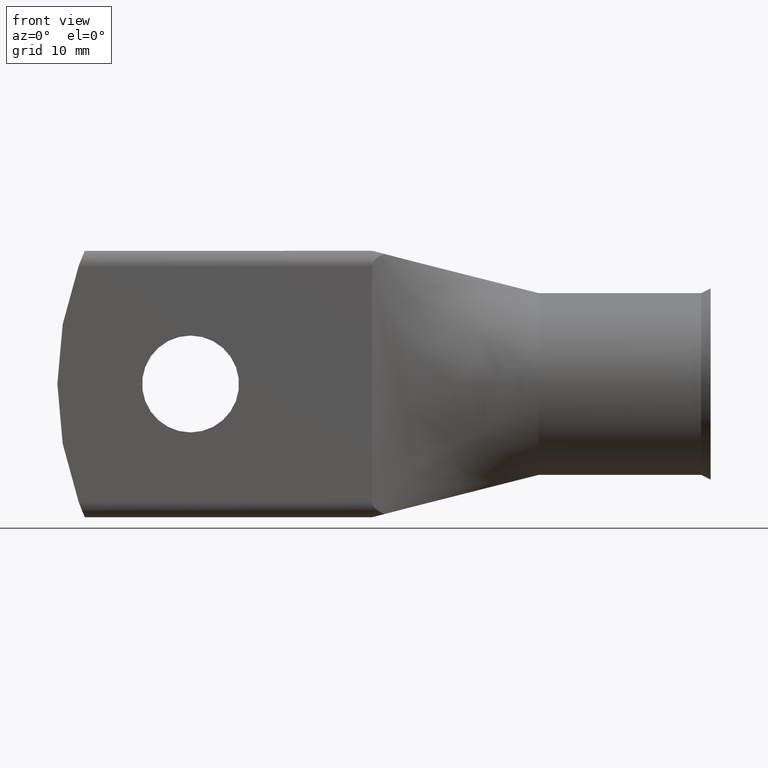
[diagram: clean part render]
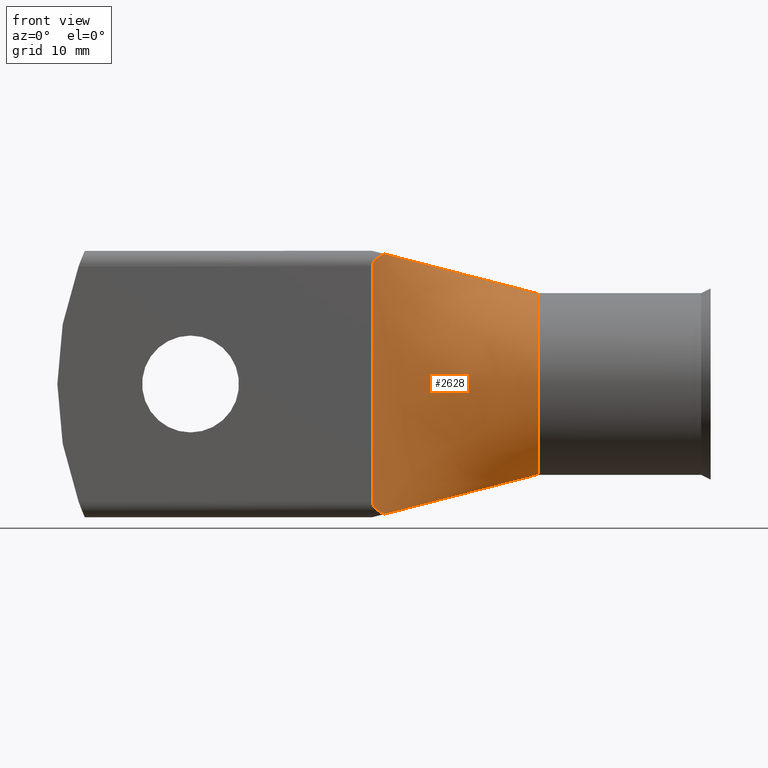
[diagram: same view with one face highlighted and labeled with its STEP entity id]
A machine part, front view. The second image highlights one B-rep face of the part: STEP entity #2628.
In plain terms, the highlighted face is a freeform B-spline surface patch.
Its self-contained STEP definition (entity closure, byte-faithful):
#6 = CARTESIAN_POINT ( 'NONE',  ( -2.102127999999999997, -1.508438455485208385, 1.260366738403396969 ) ) ;
#15 = CARTESIAN_POINT ( 'NONE',  ( 1.338032000000000110, 0.01136571569883744123, -0.1827825998740106872 ) ) ;
#33 = CARTESIAN_POINT ( 'NONE',  ( -0.03803199999999777592, -0.6724159754329607219, 1.431786538840532641 ) ) ;
#42 = CARTESIAN_POINT ( 'NONE',  ( -0.03803200000000050984, -0.1100373086516002880, -0.07425965862740598056 ) ) ;
#68 = CARTESIAN_POINT ( 'NONE',  ( 0.6499999999999999112, -0.06499999999999998834, -0.02291666666666662341 ) ) ;
#93 = CARTESIAN_POINT ( 'NONE',  ( -0.03803200000000078046, -0.09799385468377602715, 0.03612633398681678459 ) ) ;
#100 = CARTESIAN_POINT ( 'NONE',  ( 0.6637798951056697039, -0.05825068778409513842, 0.5142437491211998557 ) ) ;
#119 = CARTESIAN_POINT ( 'NONE',  ( -0.03803200000000023229, -0.1848515704486949907, 0.2133567811237993550 ) ) ;
#132 = CARTESIAN_POINT ( 'NONE',  ( 1.338032000000000332, 0.2650400686760947533, 0.3687660055124446501 ) ) ;
#154 = EDGE_CURVE ( 'NONE', #2520, #3222, #897, .T. ) ;
#184 = B_SPLINE_SURFACE_WITH_KNOTS ( 'NONE', 3, 1, ( 
 ( #280, #4276, #2690, #4252, #1054 ),
 ( #4302, #3052, #331, #1855, #4718 ),
 ( #3500, #720, #4642, #1159, #3552 ),
 ( #3888, #1081, #3077, #4667, #2347 ),
 ( #2295, #5081, #1108, #1515, #2666 ),
 ( #3525, #3446, #2246, #3475, #3101 ),
 ( #1956, #5135, #748, #696, #4690 ),
 ( #2272, #1131, #3862, #305, #5108 ),
 ( #1879, #2715, #2320, #4614, #775 ),
 ( #2741, #1928, #5058, #3025, #3914 ),
 ( #356, #1540, #3129, #2642, #4329 ),
 ( #3940, #382, #4226, #3182, #4047 ),
 ( #4434, #4021, #1185, #874, #3234 ),
 ( #513, #15, #2873, #3628, #3997 ),
 ( #491, #801, #2066, #4355, #2037 ),
 ( #2373, #3653, #4459, #42, #4385 ),
 ( #2427, #2403, #1619, #2091, #2481 ),
 ( #2795, #463, #68, #410, #3970 ),
 ( #1644, #827, #439, #1983, #4820 ),
 ( #3209, #1567, #1263, #93, #4743 ),
 ( #3154, #1668, #901, #3260, #2453 ),
 ( #2846, #3579, #4847, #1593, #850 ),
 ( #2012, #4409, #1288, #3605, #2768 ),
 ( #4073, #4768, #3677, #1210, #4796 ),
 ( #1238, #2821, #1311, #119, #2898 ),
 ( #4872, #1691, #3287, #3571, #1679 ),
 ( #3274, #4347, #2787, #819, #4085 ),
 ( #1558, #5127, #1201, #793, #1585 ),
 ( #4320, #401, #4470, #2364, #934 ),
 ( #4108, #3146, #766, #4373, #4759 ),
 ( #3120, #2516, #1299, #1945, #2394 ),
 ( #3988, #132, #3543, #430, #3932 ),
 ( #549, #1533, #1975, #2002, #6 ),
 ( #1704, #3174, #3597, #33, #4736 ),
 ( #2125, #5099, #4859, #1177, #2886 ),
 ( #4494, #2759, #913, #2493, #525 ) ),
 .UNSPECIFIED., .F., .F., .F.,
 ( 4, 3, 2, 2, 2, 2, 2, 2, 2, 2, 2, 2, 2, 2, 2, 3, 4 ),
 ( 2, 1, 1, 1, 2 ),
 ( -0.02000000000000000042, 0.000000000000000000, 0.1249999999999999445, 0.1874999999999999722, 0.2500000000000000000, 0.3125000000000000000, 0.3750000000000000555, 0.4375000000000000000, 0.5000000000000000000, 0.5625000000000001110, 0.6250000000000001110, 0.6875000000000001110, 0.7500000000000001110, 0.8125000000000001110, 0.8750000000000000000, 1.000000000000000000, 2.000000000000000000 ),
 ( -1.000000000000000000, 0.000000000000000000, 1.000000000000000000, 2.000000000000000000, 5.000000000000000000 ),
 .UNSPECIFIED. ) ;
#206 = DIRECTION ( 'NONE',  ( -0.000000000000000000, 0.000000000000000000, 1.000000000000000000 ) ) ;
#256 = CARTESIAN_POINT ( 'NONE',  ( 0.6499999999999999112, -0.06500000000000000222, -0.4850000000000000977 ) ) ;
#280 = CARTESIAN_POINT ( 'NONE',  ( 2.026064000000000309, 0.6863059911300031235, -0.1763132482895397313 ) ) ;
#305 = CARTESIAN_POINT ( 'NONE',  ( -0.03803199999999996167, -0.2897444427546013168, -0.4037430692169367008 ) ) ;
#331 = CARTESIAN_POINT ( 'NONE',  ( 0.6499999999999999112, -0.06500000000000000222, -0.5646666666666667611 ) ) ;
#356 = CARTESIAN_POINT ( 'NONE',  ( 2.026064000000000753, 0.2076845532433655439, -0.2734830712099894923 ) ) ;
#382 = CARTESIAN_POINT ( 'NONE',  ( 1.338032000000000110, 0.05485157044869496540, -0.2449765522095340708 ) ) ;
#401 = CARTESIAN_POINT ( 'NONE',  ( 1.338031999999999444, 0.1597444427546013956, 0.3295902641163968028 ) ) ;
#410 = CARTESIAN_POINT ( 'NONE',  ( -0.03803200000000050984, -0.09487150569120159083, -0.01805903841851114883 ) ) ;
#430 = CARTESIAN_POINT ( 'NONE',  ( -0.03803200000000023229, -0.3950400686760947022, 0.6395673278208888757 ) ) ;
#439 = CARTESIAN_POINT ( 'NONE',  ( 0.6499999999999999112, -0.06499999999999998834, 0.02291666666666674831 ) ) ;
#446 = CARTESIAN_POINT ( 'NONE',  ( 0.6889221515978937171, -0.04492494634703202150, 0.5321616947890102090 ) ) ;
#463 = CARTESIAN_POINT ( 'NONE',  ( 1.338032000000000332, -0.03512849430879838586, -0.02777429491482210147 ) ) ;
#491 = CARTESIAN_POINT ( 'NONE',  ( 2.026064000000000309, 0.04289732738423857744, -0.1550734250725859520 ) ) ;
#513 = CARTESIAN_POINT ( 'NONE',  ( 2.026064000000000309, 0.08773143139767484999, -0.2051485330813547781 ) ) ;
#525 = CARTESIAN_POINT ( 'NONE',  ( -2.102127999999973795, -4.467114794225111929, 6.410704989279595090 ) ) ;
#549 = CARTESIAN_POINT ( 'NONE',  ( 2.026064000000000309, 0.6567192277426041613, 0.1948166307983018042 ) ) ;
#563 = VECTOR ( 'NONE', #1496, 39.37007874015748143 ) ;
#577 = LINE ( 'NONE', #3031, #2381 ) ;
#640 = CARTESIAN_POINT ( 'NONE',  ( 1.338032000000000110, 0.3398715056912016141, 0.000000000000000000 ) ) ;
#696 = CARTESIAN_POINT ( 'NONE',  ( -0.03803199999999996167, -0.3078509057290484408, -0.4404276638948980138 ) ) ;
#720 = CARTESIAN_POINT ( 'NONE',  ( 1.338032000000000110, 0.3007907411025351196, -0.3729910849810239015 ) ) ;
#738 = VERTEX_POINT ( 'NONE', #4712 ) ;
#748 = CARTESIAN_POINT ( 'NONE',  ( 0.6499999999999999112, -0.06499999999999998834, -0.3895833333333334481 ) ) ;
#766 = CARTESIAN_POINT ( 'NONE',  ( 0.6499999999999999112, -0.06499999999999997446, 0.3895833333333333370 ) ) ;
#775 = CARTESIAN_POINT ( 'NONE',  ( -2.102127999999999552, -0.8198174502241143413, -0.3755266560451027136 ) ) ;
#793 = CARTESIAN_POINT ( 'NONE',  ( -0.03803200000000023229, -0.2537043625560286286, 0.3345066640112758227 ) ) ;
#801 = CARTESIAN_POINT ( 'NONE',  ( 1.338032000000000110, -0.01105133630788069678, -0.1348283792029596195 ) ) ;
#819 = CARTESIAN_POINT ( 'NONE',  ( -0.03803200000000023229, -0.2357716053140972712, 0.3019622818426349609 ) ) ;
#827 = CARTESIAN_POINT ( 'NONE',  ( 1.338032000000000110, -0.03512849430879838586, 0.02777429491482227147 ) ) ;
#850 = CARTESIAN_POINT ( 'NONE',  ( -2.102128000000001773, -0.2807946547684772032, 0.03360314985482860256 ) ) ;
#856 = CARTESIAN_POINT ( 'NONE',  ( 0.6998873380981881498, -0.03883504609788611395, 0.5371233076178008048 ) ) ;
#874 = CARTESIAN_POINT ( 'NONE',  ( -0.03803200000000023229, -0.1548575887792589534, -0.1616883586194272082 ) ) ;
#880 = CARTESIAN_POINT ( 'NONE',  ( 0.6593307022810661611, -0.06048995556634014642, 0.5094855770316909505 ) ) ;
#887 = ORIENTED_EDGE ( 'NONE', *, *, #2387, .F. ) ;
#897 = B_SPLINE_CURVE_WITH_KNOTS ( 'NONE', 3,
 ( #856, #2433, #446, #1625, #3587, #100, #880, #1191, #4027, #4362, #2460, #1599 ),
 .UNSPECIFIED., .F., .F.,
 ( 4, 2, 2, 2, 2, 4 ),
 ( 1.800282588843909814E-15, 0.0005109334260981128299, 0.001021866852194425234, 0.001532800278290737854, 0.001788266991338896984, 0.002043733704387055896 ),
 .UNSPECIFIED. ) ;
#901 = CARTESIAN_POINT ( 'NONE',  ( 0.6499999999999999112, -0.06499999999999998834, 0.09166666666666682672 ) ) ;
#913 = CARTESIAN_POINT ( 'NONE',  ( 0.6500000000000000222, -0.06500000000000019651, 1.650000000000001021 ) ) ;
#934 = CARTESIAN_POINT ( 'NONE',  ( -2.102127999999998664, -0.9639777710184053161, 0.5149722768677466034 ) ) ;
#1054 = CARTESIAN_POINT ( 'NONE',  ( -2.102127999999999997, -1.567611982260006087, -1.363373503420920896 ) ) ;
#1081 = CARTESIAN_POINT ( 'NONE',  ( 1.338032000000000110, 0.2958596138713018853, -0.3724083153991508688 ) ) ;
#1108 = CARTESIAN_POINT ( 'NONE',  ( 0.6499999999999999112, -0.06500000000000000222, -0.5041666666666667629 ) ) ;
#1131 = CARTESIAN_POINT ( 'NONE',  ( 1.338031999999999666, 0.1597444427546013679, -0.3295902641163968028 ) ) ;
#1153 = CARTESIAN_POINT ( 'NONE',  ( 0.9940160000000000107, 0.1154298069356509832, -0.4612041576995754566 ) ) ;
#1159 = CARTESIAN_POINT ( 'NONE',  ( -0.03803200000000019065, -0.4307907411025351241, -0.7416755816856429595 ) ) ;
#1177 = CARTESIAN_POINT ( 'NONE',  ( -0.03803199999999559017, -0.9189723369946194431, 2.135981393080216062 ) ) ;
#1185 = CARTESIAN_POINT ( 'NONE',  ( 0.6499999999999999112, -0.06499999999999997446, -0.1833333333333332926 ) ) ;
#1191 = CARTESIAN_POINT ( 'NONE',  ( 0.6541651848735936525, -0.06302299680220352363, 0.5011708511003886146 ) ) ;
#1201 = CARTESIAN_POINT ( 'NONE',  ( 0.6499999999999999112, -0.06499999999999997446, 0.3208333333333334147 ) ) ;
#1210 = CARTESIAN_POINT ( 'NONE',  ( -0.03803200000000050984, -0.1548575887792590922, 0.1616883586194273748 ) ) ;
#1238 = CARTESIAN_POINT ( 'NONE',  ( 2.026064000000000309, 0.1747031408973900857, 0.2607864377524015675 ) ) ;
#1263 = CARTESIAN_POINT ( 'NONE',  ( 0.6499999999999999112, -0.06499999999999998834, 0.04583333333333345500 ) ) ;
#1279 = CARTESIAN_POINT ( 'NONE',  ( 1.338032000000000110, 0.2958568313063515420, 0.3724324052485260550 ) ) ;
#1288 = CARTESIAN_POINT ( 'NONE',  ( 0.6499999999999999112, -0.06499999999999998834, 0.1604166666666668184 ) ) ;
#1299 = CARTESIAN_POINT ( 'NONE',  ( 0.6499999999999999112, -0.06499999999999997446, 0.4583333333333333148 ) ) ;
#1311 = CARTESIAN_POINT ( 'NONE',  ( 0.6499999999999999112, -0.06499999999999997446, 0.2291666666666667684 ) ) ;
#1336 = CARTESIAN_POINT ( 'NONE',  ( 0.6499999999999999112, -0.06500000000000000222, 0.4850000000000000422 ) ) ;
#1340 = CARTESIAN_POINT ( 'NONE',  ( 0.6889634406949919354, -0.04490238067934738952, -0.5321835764219116083 ) ) ;
#1388 = AXIS2_PLACEMENT_3D ( 'NONE', #640, #3807, #1437 ) ;
#1437 = DIRECTION ( 'NONE',  ( 0.000000000000000000, 0.000000000000000000, -1.000000000000000000 ) ) ;
#1492 = CARTESIAN_POINT ( 'NONE',  ( 0.6998873381343300171, -0.03883504607893028399, -0.5371233076084719338 ) ) ;
#1496 = DIRECTION ( 'NONE',  ( -0.8633197628486272146, -0.4527946901728694962, 0.2228361631922546049 ) ) ;
#1515 = CARTESIAN_POINT ( 'NONE',  ( -0.03803200000000050984, -0.3950400686760944247, -0.6395673278208889867 ) ) ;
#1533 = CARTESIAN_POINT ( 'NONE',  ( 1.338032000000000110, 0.2958596138713020518, 0.3724083153991509243 ) ) ;
#1540 = CARTESIAN_POINT ( 'NONE',  ( 1.338032000000000332, 0.07134227662168278472, -0.2627832022716614091 ) ) ;
#1558 = CARTESIAN_POINT ( 'NONE',  ( 2.026064000000000309, 0.3124087251120574171, 0.2934866719774486543 ) ) ;
#1567 = CARTESIAN_POINT ( 'NONE',  ( 1.338032000000000554, -0.03200614531622394260, 0.05554033267985012540 ) ) ;
#1585 = CARTESIAN_POINT ( 'NONE',  ( -2.102128000000000441, -0.8198174502241146744, 0.3755266560451030466 ) ) ;
#1593 = CARTESIAN_POINT ( 'NONE',  ( -0.03803200000000050984, -0.1189486636921193025, 0.09433828746370727381 ) ) ;
#1599 = CARTESIAN_POINT ( 'NONE',  ( 0.6499999999999999112, -0.06500000000000000222, 0.4850000000000000422 ) ) ;
#1619 = CARTESIAN_POINT ( 'NONE',  ( 0.6499999999999999112, -0.06499999999999998834, -0.04583333333333328846 ) ) ;
#1625 = CARTESIAN_POINT ( 'NONE',  ( 0.6784367559444557383, -0.05059622238862099969, 0.5260182707967395732 ) ) ;
#1644 = CARTESIAN_POINT ( 'NONE',  ( 2.026064000000000309, -0.005256988617596779906, 0.03263192316297779810 ) ) ;
#1658 = ORIENTED_EDGE ( 'NONE', *, *, #2558, .T. ) ;
#1668 = CARTESIAN_POINT ( 'NONE',  ( 1.338032000000000332, -0.01996269134839960199, 0.1090736747059273953 ) ) ;
#1679 = CARTESIAN_POINT ( 'NONE',  ( -2.102128000000001773, -0.6103691064867314831, 0.2092838575800211598 ) ) ;
#1691 = CARTESIAN_POINT ( 'NONE',  ( 1.338032000000000332, 0.07134227662168290962, 0.2627832022716615201 ) ) ;
#1704 = CARTESIAN_POINT ( 'NONE',  ( 2.026063999999995868, 1.149831950865921604, -0.1135730776810642551 ) ) ;
#1707 = VERTEX_POINT ( 'NONE', #3816 ) ;
#1830 = CARTESIAN_POINT ( 'NONE',  ( 0.6524317899654541453, -0.06387312272778239430, -0.4983860355022783351 ) ) ;
#1855 = CARTESIAN_POINT ( 'NONE',  ( -0.03803200000000014902, -0.4357218683337683585, -0.7557594787704366990 ) ) ;
#1879 = CARTESIAN_POINT ( 'NONE',  ( 2.026063999999999421, 0.3124087251120572506, -0.2934866719774487098 ) ) ;
#1924 = DIRECTION ( 'NONE',  ( -0.8633197628486274366, -0.4527946901728692186, -0.2228361631922546604 ) ) ;
#1928 = CARTESIAN_POINT ( 'NONE',  ( 1.338032000000000110, 0.1057716053140972112, -0.2938710514906984761 ) ) ;
#1945 = CARTESIAN_POINT ( 'NONE',  ( -0.03803200000000023229, -0.3611002064998773409, 0.5557332216717957296 ) ) ;
#1956 = CARTESIAN_POINT ( 'NONE',  ( 2.026063999999999421, 0.4207018114580969859, -0.2878946722102042610 ) ) ;
#1975 = CARTESIAN_POINT ( 'NONE',  ( 0.6500000000000000222, -0.06500000000000000222, 0.5500000000000000444 ) ) ;
#1983 = CARTESIAN_POINT ( 'NONE',  ( -0.03803200000000023229, -0.09487150569120159083, 0.01805903841851122515 ) ) ;
#2002 = CARTESIAN_POINT ( 'NONE',  ( -0.03803199999999996167, -0.4258596138713020562, 0.7275916846008492200 ) ) ;
#2012 = CARTESIAN_POINT ( 'NONE',  ( 2.026064000000000309, 0.08773143139767491938, 0.2051485330813547503 ) ) ;
#2027 = ORIENTED_EDGE ( 'NONE', *, *, #154, .T. ) ;
#2037 = CARTESIAN_POINT ( 'NONE',  ( -2.102128000000000441, -0.2807946547684770922, -0.03360314985482781847 ) ) ;
#2052 = VECTOR ( 'NONE', #1924, 39.37007874015748854 ) ;
#2066 = CARTESIAN_POINT ( 'NONE',  ( 0.6499999999999999112, -0.06499999999999997446, -0.1145833333333332454 ) ) ;
#2091 = CARTESIAN_POINT ( 'NONE',  ( -0.03803200000000050984, -0.09799385468377601327, -0.03612633398681665275 ) ) ;
#2119 = CARTESIAN_POINT ( 'NONE',  ( 0.6593644356050306632, -0.06047330104018210778, -0.5095344984617602435 ) ) ;
#2125 = CARTESIAN_POINT ( 'NONE',  ( 2.026063999999991427, 1.642944673989239046, -0.4219627861604303143 ) ) ;
#2183 = ORIENTED_EDGE ( 'NONE', *, *, #2468, .T. ) ;
#2246 = CARTESIAN_POINT ( 'NONE',  ( 0.6499999999999999112, -0.06500000000000000222, -0.4583333333333334814 ) ) ;
#2272 = CARTESIAN_POINT ( 'NONE',  ( 2.026063999999999421, 0.3844888855092026825, -0.2925138615661267982 ) ) ;
#2295 = CARTESIAN_POINT ( 'NONE',  ( 2.026064000000000753, 0.5950801373521888982, -0.2333653443582223708 ) ) ;
#2320 = CARTESIAN_POINT ( 'NONE',  ( 0.6499999999999999112, -0.06499999999999997446, -0.3208333333333333592 ) ) ;
#2347 = CARTESIAN_POINT ( 'NONE',  ( -2.102128000000000441, -1.508438455485207719, -1.260366738403396969 ) ) ;
#2364 = CARTESIAN_POINT ( 'NONE',  ( -0.03803199999999969105, -0.2897444427546013168, 0.4037430692169367008 ) ) ;
#2373 = CARTESIAN_POINT ( 'NONE',  ( 2.026064000000000753, 0.02507461730320068027, -0.1264806827451878390 ) ) ;
#2381 = VECTOR ( 'NONE', #206, 39.37007874015748143 ) ;
#2387 = EDGE_CURVE ( 'NONE', #1707, #3222, #577, .T. ) ;
#2394 = CARTESIAN_POINT ( 'NONE',  ( -2.102128000000000441, -1.249400825999509523, 0.8479328866871828074 ) ) ;
#2403 = CARTESIAN_POINT ( 'NONE',  ( 1.338032000000000332, -0.03200614531622395648, -0.05554033267984993111 ) ) ;
#2427 = CARTESIAN_POINT ( 'NONE',  ( 2.026064000000000753, 0.0009877093675520714870, -0.06524733202636656682 ) ) ;
#2433 = CARTESIAN_POINT ( 'NONE',  ( 0.6943382829964857006, -0.04194114856006299352, 0.5348090716661901833 ) ) ;
#2453 = CARTESIAN_POINT ( 'NONE',  ( -2.102128000000001773, -0.2451492346064015337, 0.02203863450962454534 ) ) ;
#2460 = CARTESIAN_POINT ( 'NONE',  ( 0.6500000000252990073, -0.06499999998830177650, 0.4884029235814064673 ) ) ;
#2468 = EDGE_CURVE ( 'NONE', #4917, #2520, #3453, .T. ) ;
#2472 = CARTESIAN_POINT ( 'NONE',  ( 0.6998873381343300171, -0.03883504607893028399, -0.5371233076084719338 ) ) ;
#2481 = CARTESIAN_POINT ( 'NONE',  ( -2.102128000000001773, -0.1969754187351041019, -0.007005335947266741296 ) ) ;
#2493 = CARTESIAN_POINT ( 'NONE',  ( -0.03803199999999340442, -1.165528698556278275, 2.840176247319899261 ) ) ;
#2510 = CARTESIAN_POINT ( 'NONE',  ( 0.6637975567854861314, -0.05824140993821200901, -0.5142570314518258856 ) ) ;
#2516 = CARTESIAN_POINT ( 'NONE',  ( 1.338032000000000110, 0.2311002064998774197, 0.3609334449948710111 ) ) ;
#2520 = VERTEX_POINT ( 'NONE', #2615 ) ;
#2558 = EDGE_CURVE ( 'NONE', #1707, #4785, #4509, .T. ) ;
#2615 = CARTESIAN_POINT ( 'NONE',  ( 0.6998873380981881498, -0.03883504609788611395, 0.5371233076178008048 ) ) ;
#2628 = ADVANCED_FACE ( 'NONE', ( #5031 ), #184, .T. ) ;
#2642 = CARTESIAN_POINT ( 'NONE',  ( -0.03803200000000050984, -0.2013422766216827198, -0.2413834643950052428 ) ) ;
#2666 = CARTESIAN_POINT ( 'NONE',  ( -2.102128000000001773, -1.385160274704377859, -1.045769311283555547 ) ) ;
#2690 = CARTESIAN_POINT ( 'NONE',  ( 0.6499999999999999112, -0.06500000000000000222, -0.5720000000000001750 ) ) ;
#2715 = CARTESIAN_POINT ( 'NONE',  ( 1.338031999999999666, 0.1237043625560286658, -0.3071600026553910623 ) ) ;
#2741 = CARTESIAN_POINT ( 'NONE',  ( 2.026064000000000309, 0.2765432106281943692, -0.2898254363147302892 ) ) ;
#2759 = CARTESIAN_POINT ( 'NONE',  ( 1.338031999999993449, 1.035528698556277494, 0.4598237526801022268 ) ) ;
#2768 = CARTESIAN_POINT ( 'NONE',  ( -2.102128000000000441, -0.3704628627953498454, 0.07095293383729096848 ) ) ;
#2787 = CARTESIAN_POINT ( 'NONE',  ( 0.6499999999999999112, -0.06499999999999997446, 0.2979166666666667740 ) ) ;
#2795 = CARTESIAN_POINT ( 'NONE',  ( 2.026064000000000753, -0.005256988617596779906, -0.03263192316297757606 ) ) ;
#2821 = CARTESIAN_POINT ( 'NONE',  ( 1.338032000000000110, 0.05485157044869504173, 0.2449765522095341819 ) ) ;
#2832 = ORIENTED_EDGE ( 'NONE', *, *, #3705, .F. ) ;
#2846 = CARTESIAN_POINT ( 'NONE',  ( 2.026064000000000753, 0.04289732738423862601, 0.1550734250725859242 ) ) ;
#2873 = CARTESIAN_POINT ( 'NONE',  ( 0.6499999999999999112, -0.06499999999999997446, -0.1604166666666665964 ) ) ;
#2886 = CARTESIAN_POINT ( 'NONE',  ( -2.102127999999982677, -3.480889347978477488, 4.693925572320862827 ) ) ;
#2898 = CARTESIAN_POINT ( 'NONE',  ( -2.102128000000000441, -0.5444062817947800115, 0.1659271244951971702 ) ) ;
#2924 = CARTESIAN_POINT ( 'NONE',  ( 0.6943676943437014915, -0.04192468545983751155, -0.5348213376600930991 ) ) ;
#3025 = CARTESIAN_POINT ( 'NONE',  ( -0.03803200000000023229, -0.2357716053140971879, -0.3019622818426349053 ) ) ;
#3031 = CARTESIAN_POINT ( 'NONE',  ( 0.6499999999999999112, -0.06500000000000000222, -1.587115114208776440E-16 ) ) ;
#3052 = CARTESIAN_POINT ( 'NONE',  ( 1.338032000000000110, 0.3057218683337682985, -0.3735738545628968788 ) ) ;
#3077 = CARTESIAN_POINT ( 'NONE',  ( 0.6499999999999999112, -0.06500000000000000222, -0.5500000000000000444 ) ) ;
#3101 = CARTESIAN_POINT ( 'NONE',  ( -2.102128000000000441, -1.249400825999509523, -0.8479328866871835846 ) ) ;
#3120 = CARTESIAN_POINT ( 'NONE',  ( 2.026064000000000309, 0.5272004129997548416, 0.2635335566564086518 ) ) ;
#3129 = CARTESIAN_POINT ( 'NONE',  ( 0.6499999999999999112, -0.06499999999999997446, -0.2520833333333333259 ) ) ;
#3146 = CARTESIAN_POINT ( 'NONE',  ( 1.338032000000000110, 0.1778509057290486028, 0.3387390027717689933 ) ) ;
#3154 = CARTESIAN_POINT ( 'NONE',  ( 2.026064000000000753, 0.02507461730320078436, 0.1264806827451879501 ) ) ;
#3174 = CARTESIAN_POINT ( 'NONE',  ( 1.338031999999997890, 0.5424159754329604954, 0.4015467944928013955 ) ) ;
#3182 = CARTESIAN_POINT ( 'NONE',  ( -0.03803200000000023229, -0.1848515704486948796, -0.2133567811237991885 ) ) ;
#3209 = CARTESIAN_POINT ( 'NONE',  ( 2.026064000000001197, 0.0009877093675521055310, 0.06524733202636680274 ) ) ;
#3222 = VERTEX_POINT ( 'NONE', #1336 ) ;
#3234 = CARTESIAN_POINT ( 'NONE',  ( -2.102128000000000441, -0.4244303551170358624, -0.09675343447770889949 ) ) ;
#3260 = CARTESIAN_POINT ( 'NONE',  ( -0.03803200000000050984, -0.1100373086516003712, 0.07425965862740625811 ) ) ;
#3274 = CARTESIAN_POINT ( 'NONE',  ( 2.026064000000000309, 0.2765432106281945912, 0.2898254363147304558 ) ) ;
#3287 = CARTESIAN_POINT ( 'NONE',  ( 0.6499999999999999112, -0.06499999999999997446, 0.2520833333333334370 ) ) ;
#3446 = CARTESIAN_POINT ( 'NONE',  ( 1.338032000000000110, 0.2311002064998773364, -0.3609334449948709000 ) ) ;
#3453 = LINE ( 'NONE', #5114, #563 ) ;
#3475 = CARTESIAN_POINT ( 'NONE',  ( -0.03803200000000023229, -0.3611002064998773409, -0.5557332216717960627 ) ) ;
#3500 = CARTESIAN_POINT ( 'NONE',  ( 2.026064000000000309, 0.6665814822050702970, -0.1886488366287143725 ) ) ;
#3525 = CARTESIAN_POINT ( 'NONE',  ( 2.026064000000000309, 0.5272004129997546196, -0.2635335566564083742 ) ) ;
#3543 = CARTESIAN_POINT ( 'NONE',  ( 0.6500000000000000222, -0.06499999999999998834, 0.5041666666666666519 ) ) ;
#3552 = CARTESIAN_POINT ( 'NONE',  ( -2.102128000000000441, -1.528162964410140656, -1.294702326742571463 ) ) ;
#3571 = CARTESIAN_POINT ( 'NONE',  ( -0.03803200000000050984, -0.2013422766216828586, 0.2413834643950053815 ) ) ;
#3579 = CARTESIAN_POINT ( 'NONE',  ( 1.338032000000000332, -0.01105133630788068463, 0.1348283792029597028 ) ) ;
#3587 = CARTESIAN_POINT ( 'NONE',  ( 0.6733597852174844078, -0.05328747811433864889, 0.5225337736828457036 ) ) ;
#3597 = CARTESIAN_POINT ( 'NONE',  ( 0.6500000000000000222, -0.06500000000000007161, 0.9166666666666670737 ) ) ;
#3605 = CARTESIAN_POINT ( 'NONE',  ( -0.03803200000000023229, -0.1413657156988374630, 0.1380507334593228663 ) ) ;
#3628 = CARTESIAN_POINT ( 'NONE',  ( -0.03803200000000023229, -0.1413657156988373798, -0.1380507334593224777 ) ) ;
#3653 = CARTESIAN_POINT ( 'NONE',  ( 1.338032000000000332, -0.01996269134839964710, -0.1090736747059272149 ) ) ;
#3677 = CARTESIAN_POINT ( 'NONE',  ( 0.6499999999999999112, -0.06499999999999997446, 0.1833333333333334592 ) ) ;
#3705 = EDGE_CURVE ( 'NONE', #4917, #738, #4383, .T. ) ;
#3707 = CARTESIAN_POINT ( 'NONE',  ( 0.6499999999999999112, -0.06500000000000001610, -0.4918774796139006034 ) ) ;
#3751 = EDGE_CURVE ( 'NONE', #738, #4785, #4323, .T. ) ;
#3807 = DIRECTION ( 'NONE',  ( 1.000000000000000000, 0.000000000000000000, 0.000000000000000000 ) ) ;
#3816 = CARTESIAN_POINT ( 'NONE',  ( 0.6499999999999999112, -0.06500000000000000222, -0.4850000000000000977 ) ) ;
#3862 = CARTESIAN_POINT ( 'NONE',  ( 0.6499999999999999112, -0.06499999999999997446, -0.3666666666666667518 ) ) ;
#3888 = CARTESIAN_POINT ( 'NONE',  ( 2.026064000000000309, 0.6567192277426038283, -0.1948166307983016654 ) ) ;
#3914 = CARTESIAN_POINT ( 'NONE',  ( -2.102128000000000441, -0.7480864212563888005, -0.3140991273705395215 ) ) ;
#3932 = CARTESIAN_POINT ( 'NONE',  ( -2.102128000000000885, -1.385160274704378969, 1.045769311283555325 ) ) ;
#3940 = CARTESIAN_POINT ( 'NONE',  ( 2.026064000000000309, 0.1747031408973899191, -0.2607864377524015120 ) ) ;
#3970 = CARTESIAN_POINT ( 'NONE',  ( -2.102128000000001773, -0.1844860227648064122, -0.003486153674044718993 ) ) ;
#3988 = CARTESIAN_POINT ( 'NONE',  ( 2.026064000000000753, 0.5950801373521894533, 0.2333653443582225651 ) ) ;
#3997 = CARTESIAN_POINT ( 'NONE',  ( -2.102128000000000441, -0.3704628627953495679, -0.07095293383729017744 ) ) ;
#4021 = CARTESIAN_POINT ( 'NONE',  ( 1.338032000000000110, 0.02485758877925900792, -0.2049783080472394048 ) ) ;
#4027 = CARTESIAN_POINT ( 'NONE',  ( 0.6526929230339094667, -0.06373114554673441068, 0.4981858065451884587 ) ) ;
#4047 = CARTESIAN_POINT ( 'NONE',  ( -2.102128000000000441, -0.5444062817947796784, -0.1659271244951968927 ) ) ;
#4073 = CARTESIAN_POINT ( 'NONE',  ( 2.026064000000000753, 0.1147151775585182193, 0.2266232827611456835 ) ) ;
#4085 = CARTESIAN_POINT ( 'NONE',  ( -2.102128000000000441, -0.7480864212563891336, 0.3140991273705394660 ) ) ;
#4102 = CARTESIAN_POINT ( 'NONE',  ( 0.6733116305413170410, -0.05331255355576896421, -0.5224940975931847698 ) ) ;
#4108 = CARTESIAN_POINT ( 'NONE',  ( 2.026064000000000309, 0.4207018114580971524, 0.2878946722102045941 ) ) ;
#4138 = ORIENTED_EDGE ( 'NONE', *, *, #3751, .F. ) ;
#4226 = CARTESIAN_POINT ( 'NONE',  ( 0.6499999999999999112, -0.06499999999999997446, -0.2291666666666666297 ) ) ;
#4252 = CARTESIAN_POINT ( 'NONE',  ( -0.03803200000000010739, -0.4406529955650015373, -0.7698433758552304385 ) ) ;
#4276 = CARTESIAN_POINT ( 'NONE',  ( 1.338032000000000110, 0.3106529955650014774, -0.3741566241447699115 ) ) ;
#4302 = CARTESIAN_POINT ( 'NONE',  ( 2.026064000000000309, 0.6764437366675366547, -0.1824810424591270519 ) ) ;
#4320 = CARTESIAN_POINT ( 'NONE',  ( 2.026063999999998977, 0.3844888855092026825, 0.2925138615661267982 ) ) ;
#4323 = LINE ( 'NONE', #1153, #2052 ) ;
#4329 = CARTESIAN_POINT ( 'NONE',  ( -2.102128000000001773, -0.6103691064867309279, -0.2092838575800210210 ) ) ;
#4347 = CARTESIAN_POINT ( 'NONE',  ( 1.338032000000000110, 0.1057716053140973084, 0.2938710514906986426 ) ) ;
#4355 = CARTESIAN_POINT ( 'NONE',  ( -0.03803200000000023229, -0.1189486636921192469, -0.09433828746370688523 ) ) ;
#4362 = CARTESIAN_POINT ( 'NONE',  ( 0.6505938502431288795, -0.06472735831500382730, 0.4917744735576563553 ) ) ;
#4373 = CARTESIAN_POINT ( 'NONE',  ( -0.03803200000000023229, -0.3078509057290485518, 0.4404276638948977363 ) ) ;
#4383 = CIRCLE ( 'NONE', #1388, 0.3750000000000000555 ) ;
#4385 = CARTESIAN_POINT ( 'NONE',  ( -2.102128000000001773, -0.2451492346064012562, -0.02203863450962411860 ) ) ;
#4409 = CARTESIAN_POINT ( 'NONE',  ( 1.338032000000000110, 0.01136571569883746899, 0.1827825998740107982 ) ) ;
#4434 = CARTESIAN_POINT ( 'NONE',  ( 2.026064000000000309, 0.1147151775585179972, -0.2266232827611455170 ) ) ;
#4459 = CARTESIAN_POINT ( 'NONE',  ( 0.6499999999999999112, -0.06499999999999997446, -0.09166666666666660468 ) ) ;
#4470 = CARTESIAN_POINT ( 'NONE',  ( 0.6499999999999999112, -0.06499999999999997446, 0.3666666666666667518 ) ) ;
#4494 = CARTESIAN_POINT ( 'NONE',  ( 2.026063999999986986, 2.136057397112556266, -0.7303524946397963458 ) ) ;
#4509 = B_SPLINE_CURVE_WITH_KNOTS ( 'NONE', 3,
 ( #256, #3707, #1830, #2119, #2510, #4102, #4900, #1340, #2924, #1492 ),
 .UNSPECIFIED., .F., .F.,
 ( 4, 2, 2, 2, 4 ),
 ( 0.000000000000000000, 0.0005152612085164446016, 0.001030522417032889203, 0.001545783625549333913, 0.002061044834065778406 ),
 .UNSPECIFIED. ) ;
#4614 = CARTESIAN_POINT ( 'NONE',  ( -0.03803199999999996167, -0.2537043625560285731, -0.3345066640112757117 ) ) ;
#4642 = CARTESIAN_POINT ( 'NONE',  ( 0.6499999999999999112, -0.06500000000000000222, -0.5573333333333334583 ) ) ;
#4667 = CARTESIAN_POINT ( 'NONE',  ( -0.03803200000000023229, -0.4258596138713019452, -0.7275916846008492200 ) ) ;
#4690 = CARTESIAN_POINT ( 'NONE',  ( -2.102127999999999552, -1.036403622916193701, -0.5929606555795917666 ) ) ;
#4712 = CARTESIAN_POINT ( 'NONE',  ( 1.338032000000000110, 0.2958568139495677540, -0.3724325352929346855 ) ) ;
#4718 = CARTESIAN_POINT ( 'NONE',  ( -2.102127999999999997, -1.547887473335073372, -1.329037915081746180 ) ) ;
#4736 = CARTESIAN_POINT ( 'NONE',  ( -2.102127999999991559, -2.494663901731842603, 2.977146155362130120 ) ) ;
#4743 = CARTESIAN_POINT ( 'NONE',  ( -2.102128000000002661, -0.1969754187351041574, 0.007005335947266767317 ) ) ;
#4759 = CARTESIAN_POINT ( 'NONE',  ( -2.102128000000000441, -1.036403622916194367, 0.5929606555795908784 ) ) ;
#4768 = CARTESIAN_POINT ( 'NONE',  ( 1.338032000000000332, 0.02485758877925911201, 0.2049783080472395713 ) ) ;
#4785 = VERTEX_POINT ( 'NONE', #2472 ) ;
#4796 = CARTESIAN_POINT ( 'NONE',  ( -2.102128000000001773, -0.4244303551170364175, 0.09675343447770906602 ) ) ;
#4820 = CARTESIAN_POINT ( 'NONE',  ( -2.102128000000000441, -0.1844860227648064122, 0.003486153674044654809 ) ) ;
#4847 = CARTESIAN_POINT ( 'NONE',  ( 0.6499999999999999112, -0.06499999999999998834, 0.1145833333333334952 ) ) ;
#4859 = CARTESIAN_POINT ( 'NONE',  ( 0.6500000000000000222, -0.06500000000000014100, 1.283333333333334103 ) ) ;
#4872 = CARTESIAN_POINT ( 'NONE',  ( 2.026064000000000753, 0.2076845532433658215, 0.2734830712099896033 ) ) ;
#4888 = EDGE_LOOP ( 'NONE', ( #887, #1658, #4138, #2832, #2183, #2027 ) ) ;
#4900 = CARTESIAN_POINT ( 'NONE',  ( 0.6784629800147911061, -0.05058227045632048002, -0.5260359304770716449 ) ) ;
#4917 = VERTEX_POINT ( 'NONE', #1279 ) ;
#5031 = FACE_OUTER_BOUND ( 'NONE', #4888, .T. ) ;
#5058 = CARTESIAN_POINT ( 'NONE',  ( 0.6499999999999999112, -0.06499999999999997446, -0.2979166666666666630 ) ) ;
#5081 = CARTESIAN_POINT ( 'NONE',  ( 1.338032000000000332, 0.2650400686760944757, -0.3687660055124445946 ) ) ;
#5099 = CARTESIAN_POINT ( 'NONE',  ( 1.338031999999995669, 0.7889723369946189946, 0.4306852735864518111 ) ) ;
#5108 = CARTESIAN_POINT ( 'NONE',  ( -2.102127999999999552, -0.9639777710184053161, -0.5149722768677466034 ) ) ;
#5114 = CARTESIAN_POINT ( 'NONE',  ( 0.9940160000000001217, 0.1154298069356510248, 0.4612041576995755121 ) ) ;
#5127 = CARTESIAN_POINT ( 'NONE',  ( 1.338032000000000110, 0.1237043625560287213, 0.3071600026553910623 ) ) ;
#5135 = CARTESIAN_POINT ( 'NONE',  ( 1.338031999999999666, 0.1778509057290484918, -0.3387390027717688268 ) ) ;